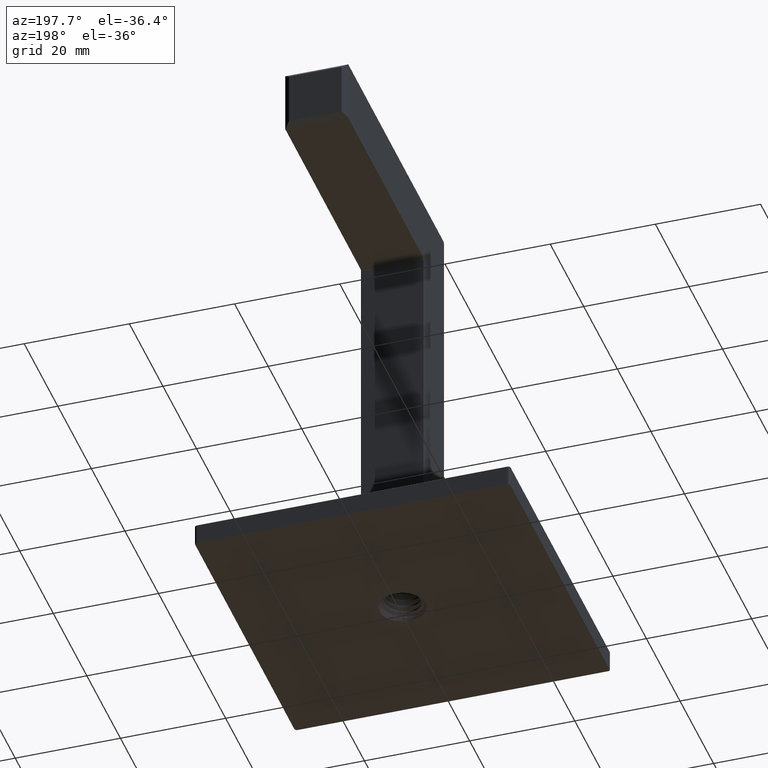
[diagram: clean part render]
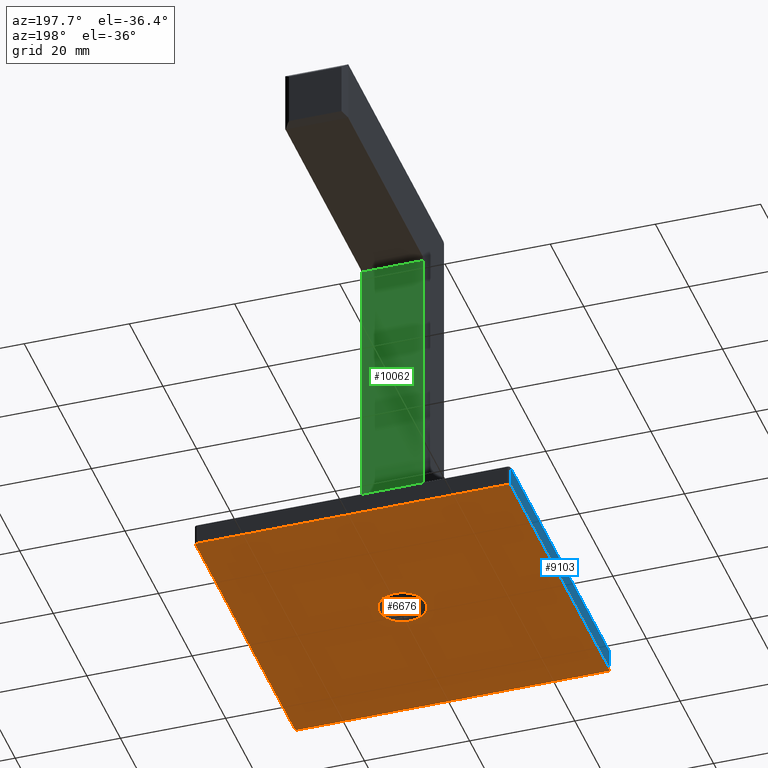
[diagram: same view with three faces highlighted in distinct colors, each labeled with its STEP entity id]
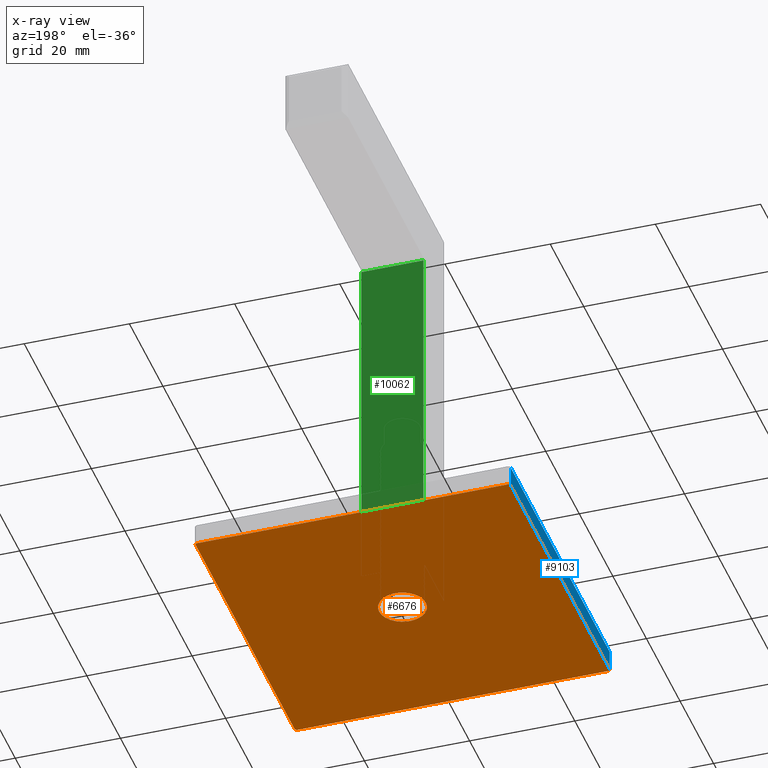
[diagram: x-ray of the same camera — body ghosted, the three highlighted faces saturated]
A machine part, auxiliary view with three faces highlighted in distinct colors.
The next image is the same camera in x-ray (body ghosted, the three faces saturated) — at least one of them is partly hidden behind the body in this view.
Their STEP definitions:

[orange] entity #6676 — the highlighted planar face has unit normal (-0, 0, 1).
#23 = CARTESIAN_POINT ( 'NONE',  ( -29.50000000000000711, 29.50000000000000000, 0.000000000000000000 ) ) ;
#130 = DIRECTION ( 'NONE',  ( 1.000000000000000000, 0.000000000000000000, 0.000000000000000000 ) ) ;
#161 = DIRECTION ( 'NONE',  ( -0.000000000000000000, 0.000000000000000000, 1.000000000000000000 ) ) ;
#170 = CARTESIAN_POINT ( 'NONE',  ( 4.441421356237281515, 0.000000000000000000, 2.032879073410320814E-17 ) ) ;
#189 = DIRECTION ( 'NONE',  ( 1.734723475976807094E-16, -1.000000000000000000, 0.000000000000000000 ) ) ;
#276 = EDGE_CURVE ( 'NONE', #1032, #7456, #4795, .T. ) ;
#301 = ORIENTED_EDGE ( 'NONE', *, *, #3294, .T. ) ;
#421 = EDGE_LOOP ( 'NONE', ( #7244, #6863 ) ) ;
#696 = CARTESIAN_POINT ( 'NONE',  ( 0.000000000000000000, 29.89999999999999858, 0.000000000000000000 ) ) ;
#964 = CARTESIAN_POINT ( 'NONE',  ( 29.89999999999999503, 5.186823193170652423E-15, 0.000000000000000000 ) ) ;
#1032 = VERTEX_POINT ( 'NONE', #7273 ) ;
#1066 = CIRCLE ( 'NONE', #6769, 0.4000000000000010214 ) ;
#1148 = CIRCLE ( 'NONE', #9920, 0.4000000000000010214 ) ;
#1225 = ORIENTED_EDGE ( 'NONE', *, *, #276, .F. ) ;
#1305 = CIRCLE ( 'NONE', #5182, 0.4000000000000010214 ) ;
#1352 = CARTESIAN_POINT ( 'NONE',  ( 29.89999999999999858, -29.50000000000000000, 0.000000000000000000 ) ) ;
#1486 = VERTEX_POINT ( 'NONE', #5226 ) ;
#1530 = ORIENTED_EDGE ( 'NONE', *, *, #1599, .F. ) ;
#1598 = VERTEX_POINT ( 'NONE', #8272 ) ;
#1599 = EDGE_CURVE ( 'NONE', #7790, #1598, #1305, .T. ) ;
#1621 = AXIS2_PLACEMENT_3D ( 'NONE', #6918, #2155, #3033 ) ;
#1741 = DIRECTION ( 'NONE',  ( 1.000000000000000000, 0.000000000000000000, 0.000000000000000000 ) ) ;
#2129 = CARTESIAN_POINT ( 'NONE',  ( 29.49999999999998934, 29.50000000000000000, 0.000000000000000000 ) ) ;
#2141 = VERTEX_POINT ( 'NONE', #5955 ) ;
#2155 = DIRECTION ( 'NONE',  ( -0.000000000000000000, 0.000000000000000000, 1.000000000000000000 ) ) ;
#2316 = AXIS2_PLACEMENT_3D ( 'NONE', #4779, #161, #130 ) ;
#2334 = CIRCLE ( 'NONE', #4333, 4.441421356237281515 ) ;
#2526 = CARTESIAN_POINT ( 'NONE',  ( 29.89999999999999147, 29.50000000000000000, 0.000000000000000000 ) ) ;
#2611 = EDGE_CURVE ( 'NONE', #2141, #5059, #1148, .T. ) ;
#2725 = EDGE_CURVE ( 'NONE', #2750, #5059, #6891, .T. ) ;
#2750 = VERTEX_POINT ( 'NONE', #2526 ) ;
#2917 = DIRECTION ( 'NONE',  ( 1.000000000000000000, 0.000000000000000000, 0.000000000000000000 ) ) ;
#3033 = DIRECTION ( 'NONE',  ( 1.000000000000000000, 0.000000000000000000, 0.000000000000000000 ) ) ;
#3095 = ORIENTED_EDGE ( 'NONE', *, *, #5319, .T. ) ;
#3141 = VECTOR ( 'NONE', #4403, 1000.000000000000000 ) ;
#3282 = PLANE ( 'NONE',  #2316 ) ;
#3294 = EDGE_CURVE ( 'NONE', #7790, #1486, #3306, .T. ) ;
#3306 = LINE ( 'NONE', #696, #6236 ) ;
#3381 = EDGE_CURVE ( 'NONE', #5110, #5979, #2334, .T. ) ;
#3509 = LINE ( 'NONE', #5184, #3141 ) ;
#3544 = CARTESIAN_POINT ( 'NONE',  ( -29.50000000000000000, -29.89999999999999858, 0.000000000000000000 ) ) ;
#3846 = DIRECTION ( 'NONE',  ( 1.000000000000000000, 0.000000000000000000, 0.000000000000000000 ) ) ;
#4020 = CARTESIAN_POINT ( 'NONE',  ( 29.50000000000000000, -29.50000000000000000, 0.000000000000000000 ) ) ;
#4286 = DIRECTION ( 'NONE',  ( -0.000000000000000000, 0.000000000000000000, 1.000000000000000000 ) ) ;
#4333 = AXIS2_PLACEMENT_3D ( 'NONE', #4663, #8524, #3846 ) ;
#4403 = DIRECTION ( 'NONE',  ( -1.734723475976807094E-16, 1.000000000000000000, -0.000000000000000000 ) ) ;
#4409 = DIRECTION ( 'NONE',  ( -1.000000000000000000, -0.000000000000000000, -0.000000000000000000 ) ) ;
#4540 = CARTESIAN_POINT ( 'NONE',  ( -29.50000000000000711, 29.89999999999999858, 0.000000000000000000 ) ) ;
#4592 = DIRECTION ( 'NONE',  ( -0.000000000000000000, 0.000000000000000000, 1.000000000000000000 ) ) ;
#4663 = CARTESIAN_POINT ( 'NONE',  ( 0.000000000000000000, 0.000000000000000000, 0.000000000000000000 ) ) ;
#4779 = CARTESIAN_POINT ( 'NONE',  ( 0.000000000000000000, 0.000000000000000000, 0.000000000000000000 ) ) ;
#4795 = CIRCLE ( 'NONE', #8392, 0.4000000000000010214 ) ;
#5007 = ORIENTED_EDGE ( 'NONE', *, *, #2725, .T. ) ;
#5059 = VERTEX_POINT ( 'NONE', #1352 ) ;
#5110 = VERTEX_POINT ( 'NONE', #5153 ) ;
#5153 = CARTESIAN_POINT ( 'NONE',  ( -4.441421356237281515, 5.439172447580683650E-16, 2.032879073410320814E-17 ) ) ;
#5182 = AXIS2_PLACEMENT_3D ( 'NONE', #23, #4592, #5461 ) ;
#5184 = CARTESIAN_POINT ( 'NONE',  ( -29.90000000000000213, -5.186823193170653212E-15, 0.000000000000000000 ) ) ;
#5226 = CARTESIAN_POINT ( 'NONE',  ( 29.49999999999998934, 29.89999999999999858, 0.000000000000000000 ) ) ;
#5319 = EDGE_CURVE ( 'NONE', #1032, #1598, #3509, .T. ) ;
#5331 = EDGE_CURVE ( 'NONE', #2750, #1486, #1066, .T. ) ;
#5461 = DIRECTION ( 'NONE',  ( 1.000000000000000000, 0.000000000000000000, 0.000000000000000000 ) ) ;
#5617 = CARTESIAN_POINT ( 'NONE',  ( -29.50000000000000000, -29.50000000000000000, 0.000000000000000000 ) ) ;
#5671 = ORIENTED_EDGE ( 'NONE', *, *, #8135, .T. ) ;
#5788 = ORIENTED_EDGE ( 'NONE', *, *, #5331, .F. ) ;
#5825 = FACE_OUTER_BOUND ( 'NONE', #6090, .T. ) ;
#5955 = CARTESIAN_POINT ( 'NONE',  ( 29.50000000000000000, -29.89999999999999858, 0.000000000000000000 ) ) ;
#5979 = VERTEX_POINT ( 'NONE', #170 ) ;
#6090 = EDGE_LOOP ( 'NONE', ( #1530, #301, #5788, #5007, #6689, #5671, #1225, #3095 ) ) ;
#6236 = VECTOR ( 'NONE', #9210, 1000.000000000000000 ) ;
#6415 = DIRECTION ( 'NONE',  ( -0.000000000000000000, 0.000000000000000000, 1.000000000000000000 ) ) ;
#6676 = ADVANCED_FACE ( 'NONE', ( #8496, #5825 ), #3282, .F. ) ;
#6689 = ORIENTED_EDGE ( 'NONE', *, *, #2611, .F. ) ;
#6769 = AXIS2_PLACEMENT_3D ( 'NONE', #2129, #8339, #2917 ) ;
#6863 = ORIENTED_EDGE ( 'NONE', *, *, #3381, .T. ) ;
#6891 = LINE ( 'NONE', #964, #8782 ) ;
#6918 = CARTESIAN_POINT ( 'NONE',  ( 0.000000000000000000, 0.000000000000000000, 0.000000000000000000 ) ) ;
#7244 = ORIENTED_EDGE ( 'NONE', *, *, #9399, .T. ) ;
#7273 = CARTESIAN_POINT ( 'NONE',  ( -29.89999999999999858, -29.50000000000000000, 0.000000000000000000 ) ) ;
#7456 = VERTEX_POINT ( 'NONE', #3544 ) ;
#7753 = CARTESIAN_POINT ( 'NONE',  ( 0.000000000000000000, -29.89999999999999858, 0.000000000000000000 ) ) ;
#7790 = VERTEX_POINT ( 'NONE', #4540 ) ;
#8135 = EDGE_CURVE ( 'NONE', #2141, #7456, #9285, .T. ) ;
#8175 = DIRECTION ( 'NONE',  ( 1.000000000000000000, 0.000000000000000000, 0.000000000000000000 ) ) ;
#8272 = CARTESIAN_POINT ( 'NONE',  ( -29.90000000000000568, 29.50000000000000000, 0.000000000000000000 ) ) ;
#8339 = DIRECTION ( 'NONE',  ( -0.000000000000000000, 0.000000000000000000, 1.000000000000000000 ) ) ;
#8392 = AXIS2_PLACEMENT_3D ( 'NONE', #5617, #4286, #8175 ) ;
#8496 = FACE_BOUND ( 'NONE', #421, .T. ) ;
#8524 = DIRECTION ( 'NONE',  ( -0.000000000000000000, 0.000000000000000000, 1.000000000000000000 ) ) ;
#8557 = VECTOR ( 'NONE', #4409, 1000.000000000000000 ) ;
#8572 = CIRCLE ( 'NONE', #1621, 4.441421356237281515 ) ;
#8782 = VECTOR ( 'NONE', #189, 1000.000000000000000 ) ;
#9210 = DIRECTION ( 'NONE',  ( 1.000000000000000000, -0.000000000000000000, 0.000000000000000000 ) ) ;
#9285 = LINE ( 'NONE', #7753, #8557 ) ;
#9399 = EDGE_CURVE ( 'NONE', #5979, #5110, #8572, .T. ) ;
#9920 = AXIS2_PLACEMENT_3D ( 'NONE', #4020, #6415, #1741 ) ;

[blue] entity #9103 — the highlighted planar face has unit normal (1, 0, -0).
#478 = PLANE ( 'NONE',  #9749 ) ;
#723 = CARTESIAN_POINT ( 'NONE',  ( -30.00000000000000000, -29.50000000000000000, 3.900000000000000355 ) ) ;
#859 = EDGE_CURVE ( 'NONE', #7748, #3835, #8309, .T. ) ;
#947 = EDGE_CURVE ( 'NONE', #2881, #3324, #8663, .T. ) ;
#1266 = VECTOR ( 'NONE', #2847, 1000.000000000000000 ) ;
#1693 = DIRECTION ( 'NONE',  ( 0.000000000000000000, 0.000000000000000000, -1.000000000000000000 ) ) ;
#2302 = ORIENTED_EDGE ( 'NONE', *, *, #9459, .T. ) ;
#2753 = FACE_OUTER_BOUND ( 'NONE', #8176, .T. ) ;
#2847 = DIRECTION ( 'NONE',  ( -1.734723475976807094E-16, 1.000000000000000000, -0.000000000000000000 ) ) ;
#2861 = CARTESIAN_POINT ( 'NONE',  ( -30.00000000000001066, 30.00000000000000000, 4.000000000000000000 ) ) ;
#2881 = VERTEX_POINT ( 'NONE', #8048 ) ;
#3324 = VERTEX_POINT ( 'NONE', #723 ) ;
#3569 = CARTESIAN_POINT ( 'NONE',  ( -30.00000000000001066, 29.50000000000000000, 3.900000000000000355 ) ) ;
#3835 = VERTEX_POINT ( 'NONE', #9732 ) ;
#4255 = ORIENTED_EDGE ( 'NONE', *, *, #859, .T. ) ;
#4329 = VECTOR ( 'NONE', #4753, 1000.000000000000000 ) ;
#4753 = DIRECTION ( 'NONE',  ( 1.734723475976807094E-16, -1.000000000000000000, 0.000000000000000000 ) ) ;
#4786 = LINE ( 'NONE', #6660, #1266 ) ;
#4947 = EDGE_CURVE ( 'NONE', #3324, #7748, #4786, .T. ) ;
#5202 = DIRECTION ( 'NONE',  ( 1.000000000000000000, 1.734723475976807094E-16, -0.000000000000000000 ) ) ;
#5423 = LINE ( 'NONE', #6124, #4329 ) ;
#5441 = CARTESIAN_POINT ( 'NONE',  ( -30.00000000000000000, -29.50000000000000000, 4.000000000000000000 ) ) ;
#5576 = DIRECTION ( 'NONE',  ( 0.000000000000000000, -0.000000000000000000, 1.000000000000000000 ) ) ;
#5616 = ORIENTED_EDGE ( 'NONE', *, *, #947, .T. ) ;
#6124 = CARTESIAN_POINT ( 'NONE',  ( -30.00000000000001066, 30.00000000000000000, 0.09999999999999982514 ) ) ;
#6226 = CARTESIAN_POINT ( 'NONE',  ( -30.00000000000001066, 29.50000000000000000, 4.000000000000000000 ) ) ;
#6660 = CARTESIAN_POINT ( 'NONE',  ( -30.00000000000001066, 30.00000000000000000, 3.900000000000000355 ) ) ;
#7748 = VERTEX_POINT ( 'NONE', #3569 ) ;
#8048 = CARTESIAN_POINT ( 'NONE',  ( -30.00000000000000000, -29.50000000000000000, 0.09999999999999982514 ) ) ;
#8052 = ORIENTED_EDGE ( 'NONE', *, *, #4947, .T. ) ;
#8176 = EDGE_LOOP ( 'NONE', ( #2302, #5616, #8052, #4255 ) ) ;
#8309 = LINE ( 'NONE', #6226, #9390 ) ;
#8663 = LINE ( 'NONE', #5441, #9155 ) ;
#9103 = ADVANCED_FACE ( 'NONE', ( #2753 ), #478, .F. ) ;
#9155 = VECTOR ( 'NONE', #5576, 1000.000000000000000 ) ;
#9390 = VECTOR ( 'NONE', #1693, 1000.000000000000000 ) ;
#9459 = EDGE_CURVE ( 'NONE', #3835, #2881, #5423, .T. ) ;
#9707 = DIRECTION ( 'NONE',  ( -1.734723475976807094E-16, 1.000000000000000000, 0.000000000000000000 ) ) ;
#9732 = CARTESIAN_POINT ( 'NONE',  ( -30.00000000000001066, 29.50000000000000000, 0.09999999999999982514 ) ) ;
#9749 = AXIS2_PLACEMENT_3D ( 'NONE', #2861, #5202, #9707 ) ;

[green] entity #10062 — the highlighted planar face has unit normal (0, -1, -0).
#5 = B_SPLINE_CURVE_WITH_KNOTS ( 'NONE', 3,
 ( #8286, #1299, #2902, #7447 ),
 .UNSPECIFIED., .F., .F.,
 ( 4, 4 ),
 ( 0.000000000000000000, 1.000000000000000000 ),
 .UNSPECIFIED. ) ;
#162 = CARTESIAN_POINT ( 'NONE',  ( -5.900000000000000355, 5.999999999999997335, 4.100000000000000533 ) ) ;
#337 = CARTESIAN_POINT ( 'NONE',  ( 6.000000000000000000, 5.999999999999998224, 0.000000000000000000 ) ) ;
#342 = CARTESIAN_POINT ( 'NONE',  ( -5.672376543209789901, 5.999999999999989342, 72.50000000000001421 ) ) ;
#510 = EDGE_CURVE ( 'NONE', #4548, #8975, #5, .T. ) ;
#961 = CARTESIAN_POINT ( 'NONE',  ( 5.558564814814815236, 5.999999999999989342, 72.50000000000001421 ) ) ;
#1142 = DIRECTION ( 'NONE',  ( -0.000000000000000000, 1.224646799147353207E-16, -1.000000000000000000 ) ) ;
#1179 = EDGE_CURVE ( 'NONE', #1333, #5479, #8002, .T. ) ;
#1299 = CARTESIAN_POINT ( 'NONE',  ( 5.672376543209788124, 5.999999999999989342, 72.50000000000001421 ) ) ;
#1333 = VERTEX_POINT ( 'NONE', #1427 ) ;
#1427 = CARTESIAN_POINT ( 'NONE',  ( -5.900000000000000355, 5.999999999999989342, 72.50000000000001421 ) ) ;
#1526 = LINE ( 'NONE', #8419, #9535 ) ;
#1857 = ORIENTED_EDGE ( 'NONE', *, *, #3638, .T. ) ;
#1969 = CARTESIAN_POINT ( 'NONE',  ( -5.558564814814816124, 5.999999999999989342, 72.50000000000001421 ) ) ;
#2095 = VECTOR ( 'NONE', #8037, 1000.000000000000000 ) ;
#2125 = LINE ( 'NONE', #8027, #4336 ) ;
#2199 = CARTESIAN_POINT ( 'NONE',  ( 5.899999999999999467, 5.999999999999997335, 4.100000000000000533 ) ) ;
#2478 = EDGE_LOOP ( 'NONE', ( #1857, #6945, #7611, #7436, #5546, #7293 ) ) ;
#2742 = LINE ( 'NONE', #4357, #6639 ) ;
#2898 = DIRECTION ( 'NONE',  ( 1.000000000000000000, -0.000000000000000000, -0.000000000000000000 ) ) ;
#2902 = CARTESIAN_POINT ( 'NONE',  ( 5.786188271604761901, 5.999999999999989342, 72.50000000000002842 ) ) ;
#3638 = EDGE_CURVE ( 'NONE', #9814, #1333, #8528, .T. ) ;
#4161 = PLANE ( 'NONE',  #4162 ) ;
#4162 = AXIS2_PLACEMENT_3D ( 'NONE', #337, #6557, #8229 ) ;
#4336 = VECTOR ( 'NONE', #1142, 1000.000000000000000 ) ;
#4357 = CARTESIAN_POINT ( 'NONE',  ( 6.000000000000000000, 5.999999999999997335, 4.100000000000000533 ) ) ;
#4548 = VERTEX_POINT ( 'NONE', #961 ) ;
#4920 = EDGE_CURVE ( 'NONE', #8975, #7573, #2125, .T. ) ;
#5133 = DIRECTION ( 'NONE',  ( -1.000000000000000000, -0.000000000000000000, -0.000000000000000000 ) ) ;
#5479 = VERTEX_POINT ( 'NONE', #1969 ) ;
#5546 = ORIENTED_EDGE ( 'NONE', *, *, #4920, .T. ) ;
#6557 = DIRECTION ( 'NONE',  ( 0.000000000000000000, -1.000000000000000000, -1.224646799147353207E-16 ) ) ;
#6630 = CARTESIAN_POINT ( 'NONE',  ( -5.558564814814816124, 5.999999999999989342, 72.50000000000001421 ) ) ;
#6639 = VECTOR ( 'NONE', #5133, 1000.000000000000000 ) ;
#6945 = ORIENTED_EDGE ( 'NONE', *, *, #1179, .T. ) ;
#7293 = ORIENTED_EDGE ( 'NONE', *, *, #7785, .T. ) ;
#7374 = CARTESIAN_POINT ( 'NONE',  ( -5.900000000000000355, 5.999999999999989342, 72.50000000000001421 ) ) ;
#7436 = ORIENTED_EDGE ( 'NONE', *, *, #510, .T. ) ;
#7447 = CARTESIAN_POINT ( 'NONE',  ( 5.899999999999999467, 5.999999999999989342, 72.50000000000001421 ) ) ;
#7573 = VERTEX_POINT ( 'NONE', #2199 ) ;
#7611 = ORIENTED_EDGE ( 'NONE', *, *, #9427, .T. ) ;
#7785 = EDGE_CURVE ( 'NONE', #7573, #9814, #2742, .T. ) ;
#8002 = B_SPLINE_CURVE_WITH_KNOTS ( 'NONE', 3,
 ( #7374, #8235, #342, #6630 ),
 .UNSPECIFIED., .F., .F.,
 ( 4, 4 ),
 ( 0.000000000000000000, 1.000000000000000000 ),
 .UNSPECIFIED. ) ;
#8027 = CARTESIAN_POINT ( 'NONE',  ( 5.899999999999999467, 5.999999999999998224, 0.000000000000000000 ) ) ;
#8037 = DIRECTION ( 'NONE',  ( 0.000000000000000000, -1.224646799147353207E-16, 1.000000000000000000 ) ) ;
#8229 = DIRECTION ( 'NONE',  ( 0.000000000000000000, 1.224646799147353207E-16, -1.000000000000000000 ) ) ;
#8235 = CARTESIAN_POINT ( 'NONE',  ( -5.786188271604762789, 5.999999999999989342, 72.50000000000002842 ) ) ;
#8286 = CARTESIAN_POINT ( 'NONE',  ( 5.558564814814815236, 5.999999999999989342, 72.50000000000001421 ) ) ;
#8419 = CARTESIAN_POINT ( 'NONE',  ( 5.899999999999999467, 5.999999999999989342, 72.50000000000001421 ) ) ;
#8528 = LINE ( 'NONE', #9496, #2095 ) ;
#8975 = VERTEX_POINT ( 'NONE', #9599 ) ;
#9410 = FACE_OUTER_BOUND ( 'NONE', #2478, .T. ) ;
#9427 = EDGE_CURVE ( 'NONE', #5479, #4548, #1526, .T. ) ;
#9496 = CARTESIAN_POINT ( 'NONE',  ( -5.900000000000000355, 5.999999999999998224, 0.000000000000000000 ) ) ;
#9535 = VECTOR ( 'NONE', #2898, 1000.000000000000000 ) ;
#9599 = CARTESIAN_POINT ( 'NONE',  ( 5.899999999999999467, 5.999999999999989342, 72.50000000000001421 ) ) ;
#9814 = VERTEX_POINT ( 'NONE', #162 ) ;
#10062 = ADVANCED_FACE ( 'NONE', ( #9410 ), #4161, .F. ) ;